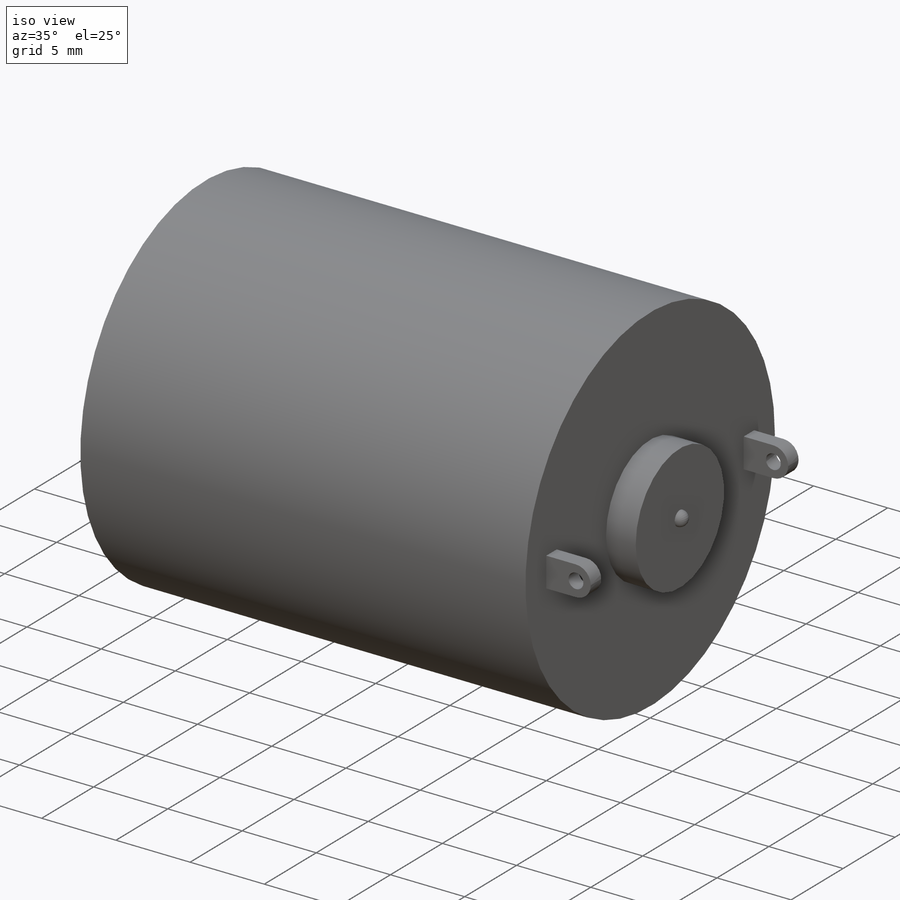
[diagram: iso view]
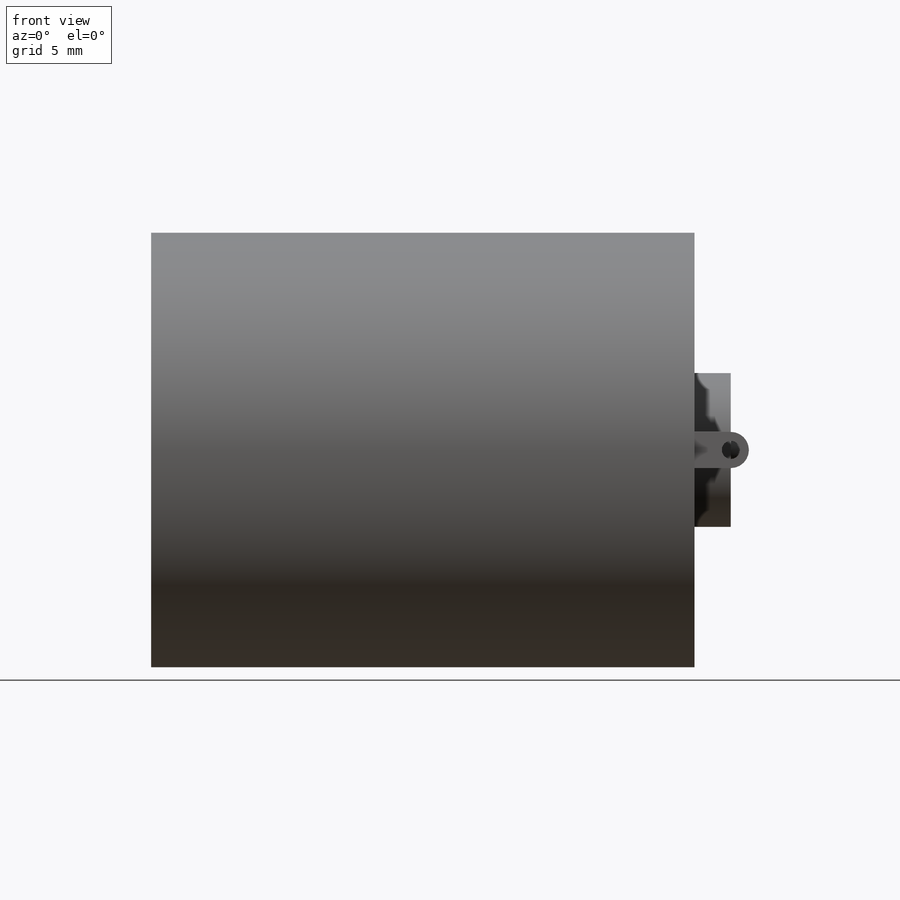
[diagram: front view]
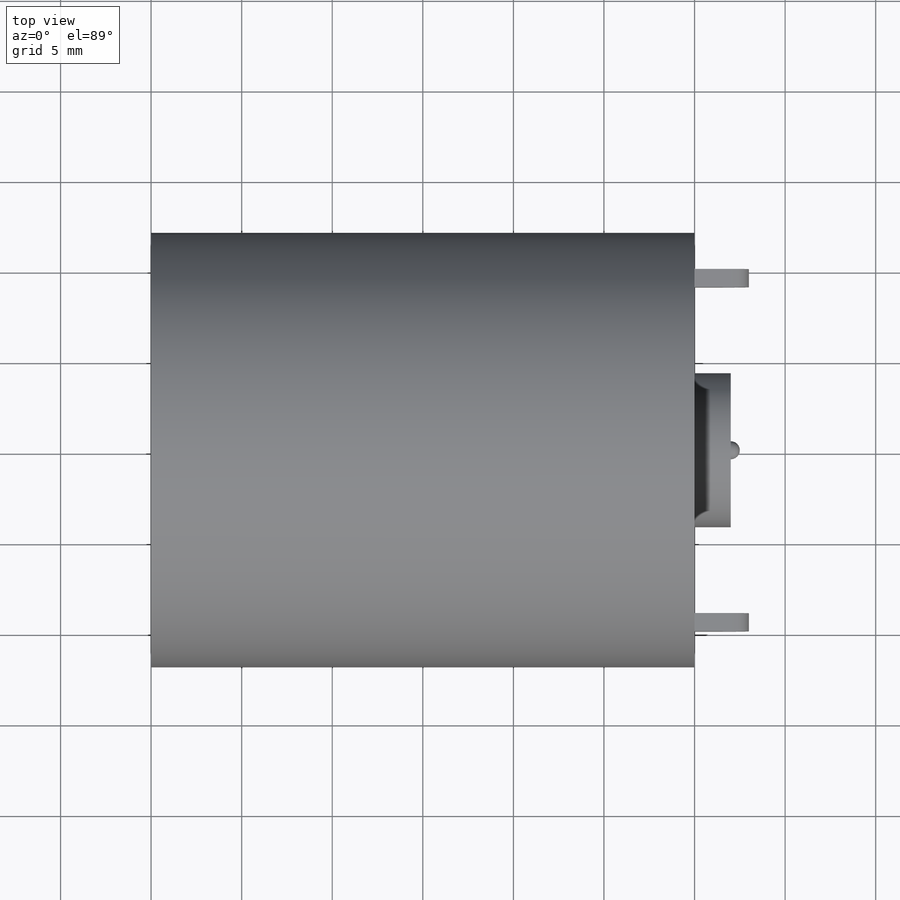
[diagram: top view]
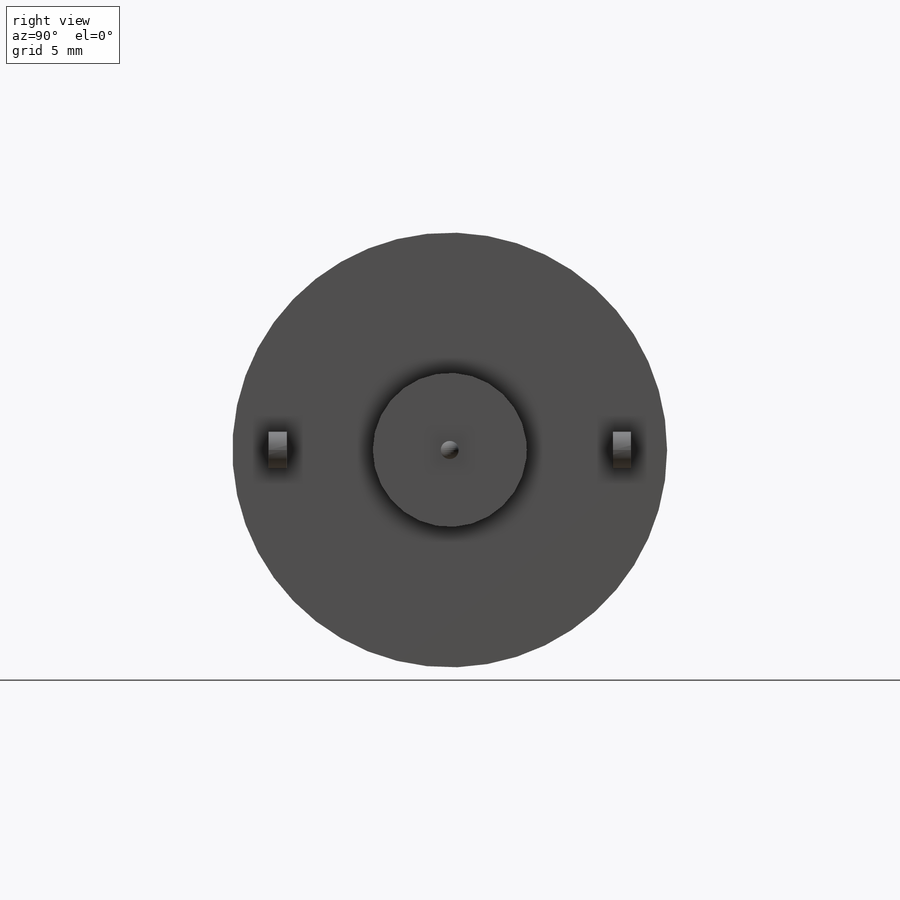
[diagram: right view]
SOLIDWORKS PART (.sldprt)
format: sldprt  version: not decoded by parser v0  size: 207,360 bytes
history: native  units: mm
features: sketch x5, extrude x4, plane x3, mirror x2, material x1, fillet x1, cut_extrude x1 (+9 scaffold rows collapsed)
feature tree (26):
  scaffold x9  (default folders/planes/origin — collapsed)
  material  "Alliage 1060"
  plane  "Plan de face"
  plane  "Plan de dessus"
  plane  "Plan de droite"
  sketch  "Esquisse1"  dims[D1=24.0mm]
  extrude  "Boss.-Extru.1"  Depth=30mm
  sketch  "Esquisse2"  dims[D1=8.5mm]
  extrude  "Boss.-Extru.2"  Depth=2mm
  sketch  "Esquisse3"  dims[D1=1.0mm D2=2.0mm D3=1.0mm D4=9.0mm]
  extrude  "Boss.-Extru.3"  Depth=3mm
  fillet  "Congé1"  Radius=1mm
  sketch  "Esquisse4"  dims[D3=1.0mm D1=1.0mm D2=0.0mm]
  cut_extrude  "Enlèv. mat.-Extru.1"  Depth=3mm
  mirror  "Symétrie1"
  sketch  "Esquisse5"  dims[D1=1.0mm]
  extrude  "Boss.-Extru.4"  Depth=0.5mm
  mirror  "Congé2"
decode coverage: 11 of 13 modeling features carry decoded parameters
note: suppression state not decoded; provenance and decode notes live in map.json
